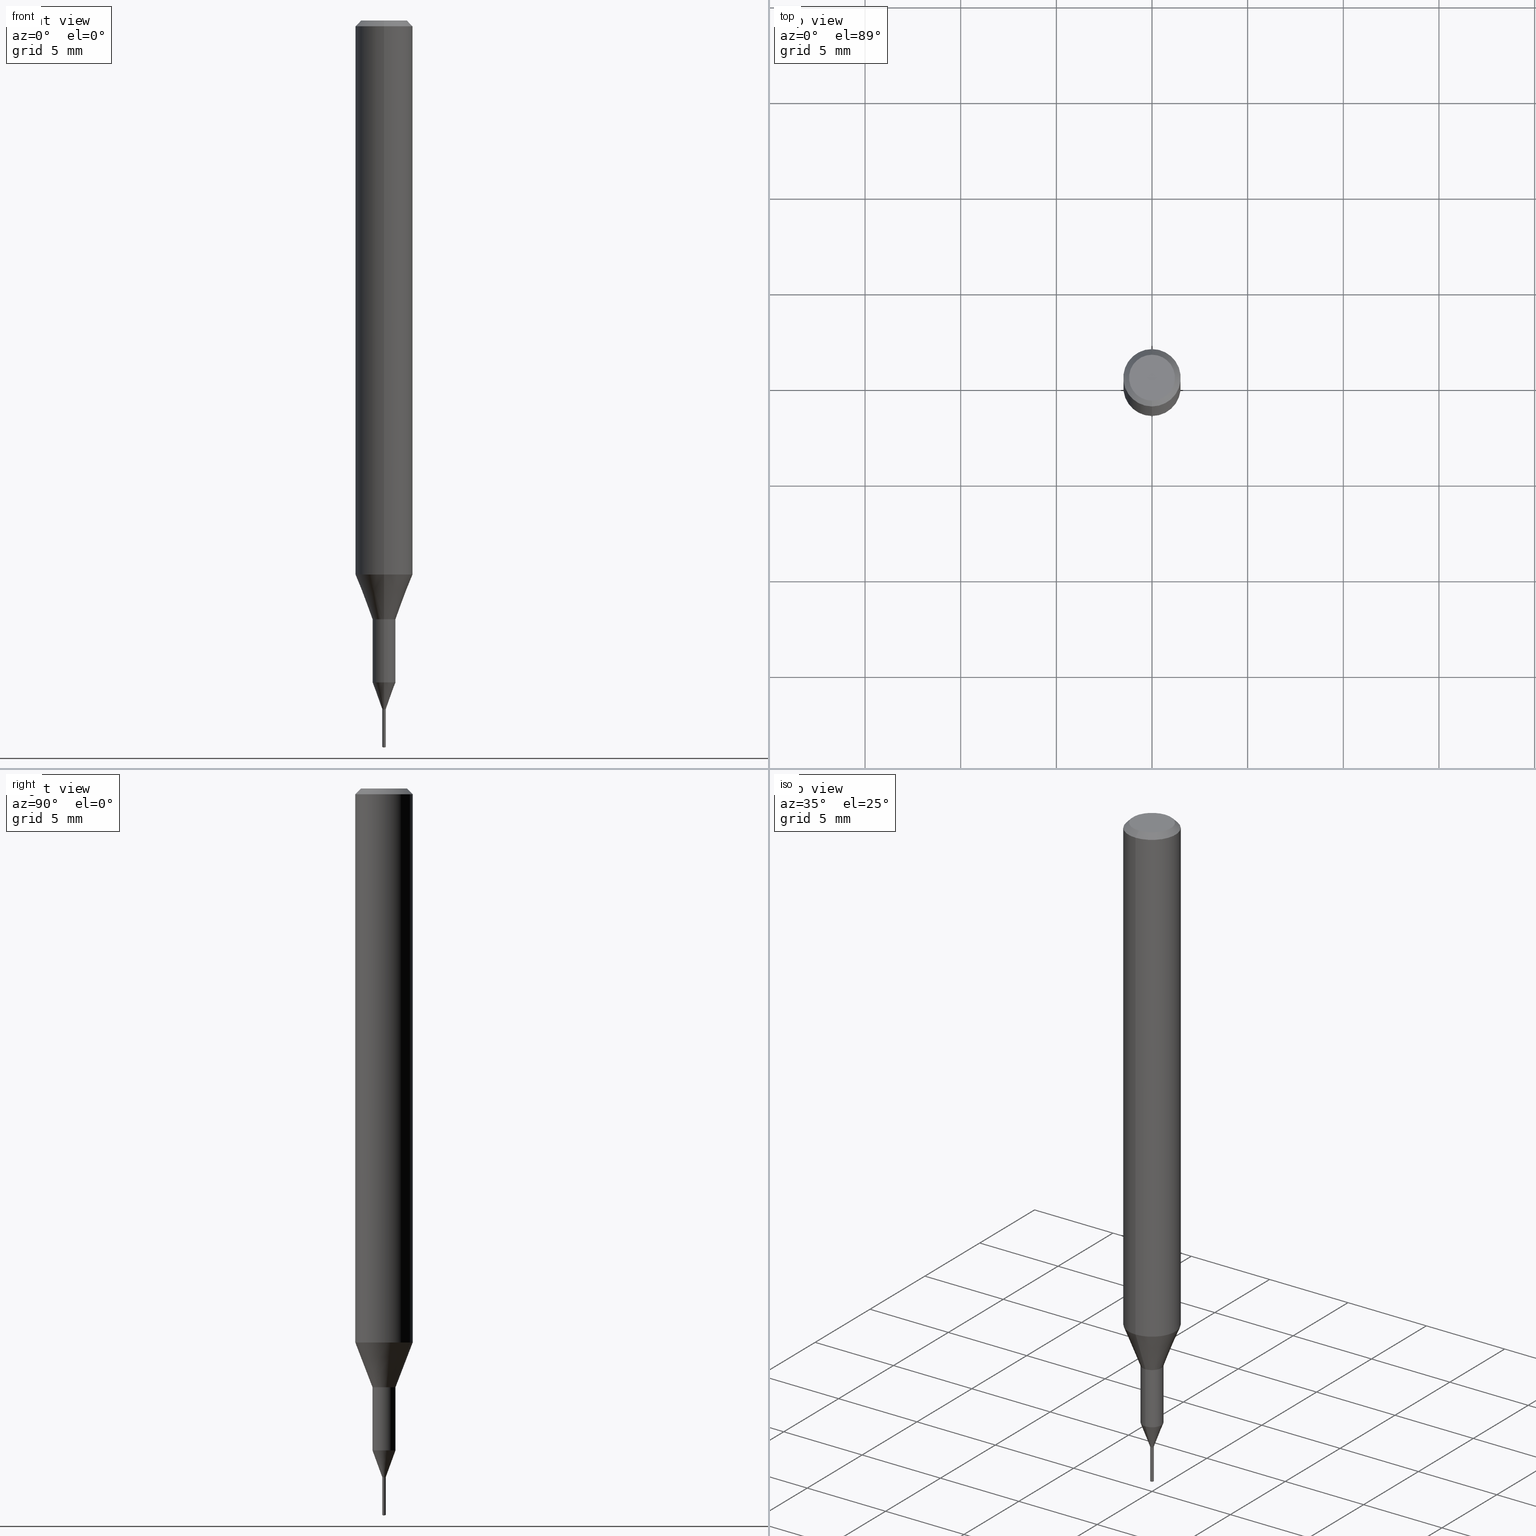
[diagram: canonical four-view strip — front | top / right | iso, engineering-drawing reading convention]
A machine part, canonical four-view strip (front | top / right | iso — engineering-drawing reading convention). The complete STEP part file that produces these views, byte-faithful:
ISO-10303-21;
HEADER;
FILE_DESCRIPTION(('no description'),'unknown implementation level');
FILE_NAME('C-UMD2018-020-Huellk.stp','  ',('CIMSOURCE GmbH'),('CADClick - KiM GmbH - www.kimweb.de'),'unknown preprocess','ACIS','unknown authorization');
FILE_SCHEMA(('automotive_design'));
ENDSEC;
DATA;
#1=MECHANICAL_DESIGN_GEOMETRIC_PRESENTATION_REPRESENTATION(' ',(#14,#15,#16,#17,#18,#19,#20,#21,#22,#23,#24,#25,#26,#27,#28,#29,#30,#31,#32,#33,#34,#35,#36,#37,#38,#39,#40,#41,#42,#43,#44,#45,#46,#47,#48,#49,#50,#51,#52,#53,#54,#55,#56,#57,#58,#59,#60,#61,#62,#63,#64,#65,#66,#67,#68,#69,#70,#71,#72,#73,#74,#75,#76,#77,#78,#79,#80,#81,#82,#83,#84,#85,#86,#87,#88,#89,#90,#91,#92),#10);
#2=PRODUCT_DEFINITION_CONTEXT('',#93,'design');
#3=APPLICATION_PROTOCOL_DEFINITION('INTERNATIONAL STANDARD','automotive_design',1994,#93);
#4=PRODUCT_CATEGORY_RELATIONSHIP('NONE','NONE',#94,#95);
#5=SHAPE_DEFINITION_REPRESENTATION(#96,#97);
#6=PRODUCT_DEFINITION_CONTEXT('',#98,'design');
#7=APPLICATION_PROTOCOL_DEFINITION('INTERNATIONAL STANDARD','automotive_design',1994,#98);
#8=PRODUCT_CATEGORY_RELATIONSHIP('NONE','NONE',#99,#100);
#9=SHAPE_DEFINITION_REPRESENTATION(#101,#102);
#10= (GEOMETRIC_REPRESENTATION_CONTEXT(3)GLOBAL_UNCERTAINTY_ASSIGNED_CONTEXT((#105))GLOBAL_UNIT_ASSIGNED_CONTEXT((#107,#108,#109))REPRESENTATION_CONTEXT('NONE','WORKSPACE'));
#14=STYLED_ITEM('',(#111),#112);
#15=STYLED_ITEM('',(#113),#114);
#16=STYLED_ITEM('',(#115),#116);
#17=STYLED_ITEM('',(#117),#118);
#18=STYLED_ITEM('',(#119),#120);
#19=STYLED_ITEM('',(#121),#122);
#20=STYLED_ITEM('',(#123),#124);
#21=STYLED_ITEM('',(#125),#126);
#22=STYLED_ITEM('',(#127),#128);
#23=STYLED_ITEM('',(#129),#130);
#24=STYLED_ITEM('',(#131),#132);
#25=STYLED_ITEM('',(#133),#134);
#26=STYLED_ITEM('',(#135),#136);
#27=STYLED_ITEM('',(#137),#138);
#28=STYLED_ITEM('',(#139),#140);
#29=STYLED_ITEM('',(#141),#142);
#30=STYLED_ITEM('',(#143),#144);
#31=STYLED_ITEM('',(#145),#146);
#32=STYLED_ITEM('',(#147),#148);
#33=STYLED_ITEM('',(#149),#150);
#34=STYLED_ITEM('',(#151),#152);
#35=STYLED_ITEM('',(#153),#154);
#36=STYLED_ITEM('',(#155),#156);
#37=STYLED_ITEM('',(#157),#158);
#38=STYLED_ITEM('',(#159),#160);
#39=STYLED_ITEM('',(#161),#162);
#40=STYLED_ITEM('',(#163),#164);
#41=STYLED_ITEM('',(#165),#166);
#42=STYLED_ITEM('',(#167),#168);
#43=STYLED_ITEM('',(#169),#170);
#44=STYLED_ITEM('',(#171),#172);
#45=STYLED_ITEM('',(#173),#174);
#46=STYLED_ITEM('',(#175),#176);
#47=STYLED_ITEM('',(#177),#178);
#48=STYLED_ITEM('',(#179),#180);
#49=STYLED_ITEM('',(#181),#182);
#50=STYLED_ITEM('',(#183),#184);
#51=STYLED_ITEM('',(#185),#186);
#52=STYLED_ITEM('',(#187),#188);
#53=STYLED_ITEM('',(#189),#190);
#54=STYLED_ITEM('',(#191),#192);
#55=STYLED_ITEM('',(#193),#194);
#56=STYLED_ITEM('',(#195),#196);
#57=STYLED_ITEM('',(#197),#198);
#58=STYLED_ITEM('',(#199),#200);
#59=STYLED_ITEM('',(#201),#202);
#60=STYLED_ITEM('',(#203),#204);
#61=STYLED_ITEM('',(#205),#206);
#62=STYLED_ITEM('',(#207),#208);
#63=STYLED_ITEM('',(#209),#210);
#64=STYLED_ITEM('',(#211),#212);
#65=STYLED_ITEM('',(#213),#214);
#66=STYLED_ITEM('',(#215),#216);
#67=STYLED_ITEM('',(#217),#218);
#68=STYLED_ITEM('',(#219),#220);
#69=STYLED_ITEM('',(#221),#222);
#70=STYLED_ITEM('',(#223),#224);
#71=STYLED_ITEM('',(#225),#226);
#72=STYLED_ITEM('',(#227),#228);
#73=STYLED_ITEM('',(#229),#230);
#74=STYLED_ITEM('',(#231),#232);
#75=STYLED_ITEM('',(#233),#234);
#76=STYLED_ITEM('',(#235),#236);
#77=STYLED_ITEM('',(#237),#238);
#78=STYLED_ITEM('',(#239),#240);
#79=STYLED_ITEM('',(#241),#242);
#80=STYLED_ITEM('',(#243),#244);
#81=STYLED_ITEM('',(#245),#246);
#82=STYLED_ITEM('',(#247),#248);
#83=STYLED_ITEM('',(#249),#250);
#84=STYLED_ITEM('',(#251),#252);
#85=STYLED_ITEM('',(#253),#254);
#86=STYLED_ITEM('',(#255),#256);
#87=STYLED_ITEM('',(#257),#258);
#88=STYLED_ITEM('',(#259),#260);
#89=STYLED_ITEM('',(#261),#262);
#90=STYLED_ITEM('',(#263),#264);
#91=STYLED_ITEM('',(#265),#266);
#92=STYLED_ITEM('',(#267),#268);
#93=APPLICATION_CONTEXT(' ');
#94=PRODUCT_CATEGORY('part','NONE');
#95=PRODUCT_RELATED_PRODUCT_CATEGORY('detail',' ',(#269));
#96=PRODUCT_DEFINITION_SHAPE('NONE','NONE',#270);
#97=ADVANCED_BREP_SHAPE_REPRESENTATION('1',(#266,#271),#10);
#98=APPLICATION_CONTEXT(' ');
#99=PRODUCT_CATEGORY('part','NONE');
#100=PRODUCT_RELATED_PRODUCT_CATEGORY('detail',' ',(#272));
#101=PRODUCT_DEFINITION_SHAPE('NONE','NONE',#273);
#102=ADVANCED_BREP_SHAPE_REPRESENTATION('2',(#200,#274),#10);
#105=UNCERTAINTY_MEASURE_WITH_UNIT(LENGTH_MEASURE(1.0E-006),#107,'','');
#107= (CONVERSION_BASED_UNIT('MILLIMETRE',#277)LENGTH_UNIT()NAMED_UNIT(#280));
#108= (NAMED_UNIT(#282)PLANE_ANGLE_UNIT()SI_UNIT($,.RADIAN.));
#109= (NAMED_UNIT(#282)SOLID_ANGLE_UNIT()SI_UNIT($,.STERADIAN.));
#111=PRESENTATION_STYLE_ASSIGNMENT((#288));
#112=ADVANCED_FACE('',(#289),#290,.T.);
#113=PRESENTATION_STYLE_ASSIGNMENT((#291));
#114=VERTEX_POINT('',#292);
#115=PRESENTATION_STYLE_ASSIGNMENT((#293));
#116=EDGE_CURVE('',#156,#118,#294,.T.);
#117=PRESENTATION_STYLE_ASSIGNMENT((#295));
#118=VERTEX_POINT('',#296);
#119=PRESENTATION_STYLE_ASSIGNMENT((#297));
#120=EDGE_CURVE('',#138,#174,#298,.T.);
#121=PRESENTATION_STYLE_ASSIGNMENT((#299));
#122=ADVANCED_FACE('',(#300),#301,.T.);
#123=PRESENTATION_STYLE_ASSIGNMENT((#302));
#124=EDGE_CURVE('',#162,#174,#303,.T.);
#125=PRESENTATION_STYLE_ASSIGNMENT((#304));
#126=ADVANCED_FACE('',(#305),#306,.T.);
#127=PRESENTATION_STYLE_ASSIGNMENT((#307));
#128=ADVANCED_FACE('',(#308),#309,.T.);
#129=PRESENTATION_STYLE_ASSIGNMENT((#310));
#130=ADVANCED_FACE('',(#311),#312,.T.);
#131=PRESENTATION_STYLE_ASSIGNMENT((#313));
#132=EDGE_CURVE('',#134,#114,#314,.T.);
#133=PRESENTATION_STYLE_ASSIGNMENT((#315));
#134=VERTEX_POINT('',#316);
#135=PRESENTATION_STYLE_ASSIGNMENT((#317));
#136=ADVANCED_FACE('',(#318),#319,.T.);
#137=PRESENTATION_STYLE_ASSIGNMENT((#320));
#138=VERTEX_POINT('',#321);
#139=PRESENTATION_STYLE_ASSIGNMENT((#322));
#140=VERTEX_POINT('',#323);
#141=PRESENTATION_STYLE_ASSIGNMENT((#324));
#142=ADVANCED_FACE('',(#325),#326,.T.);
#143=PRESENTATION_STYLE_ASSIGNMENT((#327));
#144=EDGE_CURVE('',#156,#256,#328,.T.);
#145=PRESENTATION_STYLE_ASSIGNMENT((#329));
#146=EDGE_CURVE('',#170,#140,#330,.T.);
#147=PRESENTATION_STYLE_ASSIGNMENT((#331));
#148=EDGE_CURVE('',#212,#254,#332,.T.);
#149=PRESENTATION_STYLE_ASSIGNMENT((#333));
#150=EDGE_CURVE('',#254,#212,#334,.T.);
#151=PRESENTATION_STYLE_ASSIGNMENT((#335));
#152=ADVANCED_FACE('',(#336),#337,.T.);
#153=PRESENTATION_STYLE_ASSIGNMENT((#338));
#154=EDGE_CURVE('',#114,#134,#339,.T.);
#155=PRESENTATION_STYLE_ASSIGNMENT((#340));
#156=VERTEX_POINT('',#341);
#157=PRESENTATION_STYLE_ASSIGNMENT((#342));
#158=ADVANCED_FACE('',(#343),#344,.T.);
#159=PRESENTATION_STYLE_ASSIGNMENT((#345));
#160=EDGE_CURVE('',#256,#156,#346,.T.);
#161=PRESENTATION_STYLE_ASSIGNMENT((#347));
#162=VERTEX_POINT('',#348);
#163=PRESENTATION_STYLE_ASSIGNMENT((#349));
#164=EDGE_CURVE('',#138,#238,#350,.T.);
#165=PRESENTATION_STYLE_ASSIGNMENT((#351));
#166=EDGE_CURVE('',#180,#256,#352,.T.);
#167=PRESENTATION_STYLE_ASSIGNMENT((#353));
#168=EDGE_CURVE('',#174,#180,#354,.T.);
#169=PRESENTATION_STYLE_ASSIGNMENT((#355));
#170=VERTEX_POINT('',#356);
#171=PRESENTATION_STYLE_ASSIGNMENT((#357));
#172=EDGE_CURVE('',#260,#252,#358,.T.);
#173=PRESENTATION_STYLE_ASSIGNMENT((#359));
#174=VERTEX_POINT('',#360);
#175=PRESENTATION_STYLE_ASSIGNMENT((#361));
#176=ADVANCED_FACE('',(#362),#363,.T.);
#177=PRESENTATION_STYLE_ASSIGNMENT((#364));
#178=ADVANCED_FACE('',(#365),#366,.T.);
#179=PRESENTATION_STYLE_ASSIGNMENT((#367));
#180=VERTEX_POINT('',#368);
#181=PRESENTATION_STYLE_ASSIGNMENT((#369));
#182=EDGE_CURVE('',#184,#134,#370,.T.);
#183=PRESENTATION_STYLE_ASSIGNMENT((#371));
#184=VERTEX_POINT('',#372);
#185=PRESENTATION_STYLE_ASSIGNMENT((#373));
#186=EDGE_CURVE('',#184,#260,#374,.T.);
#187=PRESENTATION_STYLE_ASSIGNMENT((#375));
#188=VERTEX_POINT('',#376);
#189=PRESENTATION_STYLE_ASSIGNMENT((#377));
#190=EDGE_CURVE('',#174,#162,#378,.T.);
#191=PRESENTATION_STYLE_ASSIGNMENT((#379));
#192=EDGE_CURVE('',#238,#138,#380,.T.);
#193=PRESENTATION_STYLE_ASSIGNMENT((#381));
#194=VERTEX_POINT('',#382);
#195=PRESENTATION_STYLE_ASSIGNMENT((#383));
#196=VERTEX_POINT('',#384);
#197=PRESENTATION_STYLE_ASSIGNMENT((#385));
#198=EDGE_CURVE('',#196,#188,#386,.T.);
#199=PRESENTATION_STYLE_ASSIGNMENT((#387));
#200=MANIFOLD_SOLID_BREP('2',#388);
#201=PRESENTATION_STYLE_ASSIGNMENT((#389));
#202=EDGE_CURVE('',#188,#196,#390,.T.);
#203=PRESENTATION_STYLE_ASSIGNMENT((#391));
#204=ADVANCED_FACE('',(#392),#393,.T.);
#205=PRESENTATION_STYLE_ASSIGNMENT((#394));
#206=EDGE_CURVE('',#140,#170,#395,.T.);
#207=PRESENTATION_STYLE_ASSIGNMENT((#396));
#208=EDGE_CURVE('',#254,#170,#397,.T.);
#209=PRESENTATION_STYLE_ASSIGNMENT((#398));
#210=EDGE_CURVE('',#252,#194,#399,.T.);
#211=PRESENTATION_STYLE_ASSIGNMENT((#400));
#212=VERTEX_POINT('',#401);
#213=PRESENTATION_STYLE_ASSIGNMENT((#402));
#214=VERTEX_POINT('',#403);
#215=PRESENTATION_STYLE_ASSIGNMENT((#404));
#216=EDGE_CURVE('',#114,#260,#405,.T.);
#217=PRESENTATION_STYLE_ASSIGNMENT((#406));
#218=ADVANCED_FACE('',(#407),#408,.T.);
#219=PRESENTATION_STYLE_ASSIGNMENT((#409));
#220=ADVANCED_FACE('',(#410),#411,.T.);
#221=PRESENTATION_STYLE_ASSIGNMENT((#412));
#222=ADVANCED_FACE('',(#413,#414),#415,.T.);
#223=PRESENTATION_STYLE_ASSIGNMENT((#416));
#224=EDGE_CURVE('',#134,#214,#417,.T.);
#225=PRESENTATION_STYLE_ASSIGNMENT((#418));
#226=EDGE_CURVE('',#212,#188,#419,.T.);
#227=PRESENTATION_STYLE_ASSIGNMENT((#420));
#228=EDGE_CURVE('',#118,#162,#421,.T.);
#229=PRESENTATION_STYLE_ASSIGNMENT((#422));
#230=ADVANCED_FACE('',(#423),#424,.T.);
#231=PRESENTATION_STYLE_ASSIGNMENT((#425));
#232=EDGE_CURVE('',#214,#114,#426,.T.);
#233=PRESENTATION_STYLE_ASSIGNMENT((#427));
#234=EDGE_CURVE('',#194,#184,#428,.T.);
#235=PRESENTATION_STYLE_ASSIGNMENT((#429));
#236=EDGE_CURVE('',#260,#184,#430,.T.);
#237=PRESENTATION_STYLE_ASSIGNMENT((#431));
#238=VERTEX_POINT('',#432);
#239=PRESENTATION_STYLE_ASSIGNMENT((#433));
#240=ADVANCED_FACE('',(#434),#435,.T.);
#241=PRESENTATION_STYLE_ASSIGNMENT((#436));
#242=ADVANCED_FACE('',(#437),#438,.T.);
#243=PRESENTATION_STYLE_ASSIGNMENT((#439));
#244=ADVANCED_FACE('',(#440),#441,.T.);
#245=PRESENTATION_STYLE_ASSIGNMENT((#442));
#246=EDGE_CURVE('',#140,#212,#443,.T.);
#247=PRESENTATION_STYLE_ASSIGNMENT((#444));
#248=EDGE_CURVE('',#118,#180,#445,.T.);
#249=PRESENTATION_STYLE_ASSIGNMENT((#446));
#250=EDGE_CURVE('',#180,#118,#447,.T.);
#251=PRESENTATION_STYLE_ASSIGNMENT((#448));
#252=VERTEX_POINT('',#449);
#253=PRESENTATION_STYLE_ASSIGNMENT((#450));
#254=VERTEX_POINT('',#451);
#255=PRESENTATION_STYLE_ASSIGNMENT((#452));
#256=VERTEX_POINT('',#453);
#257=PRESENTATION_STYLE_ASSIGNMENT((#454));
#258=ADVANCED_FACE('',(#455),#456,.T.);
#259=PRESENTATION_STYLE_ASSIGNMENT((#457));
#260=VERTEX_POINT('',#458);
#261=PRESENTATION_STYLE_ASSIGNMENT((#459));
#262=EDGE_CURVE('',#196,#254,#460,.T.);
#263=PRESENTATION_STYLE_ASSIGNMENT((#461));
#264=EDGE_CURVE('',#194,#252,#462,.T.);
#265=PRESENTATION_STYLE_ASSIGNMENT((#463));
#266=MANIFOLD_SOLID_BREP('1',#464);
#267=PRESENTATION_STYLE_ASSIGNMENT((#465));
#268=EDGE_CURVE('',#162,#238,#466,.T.);
#269=PRODUCT('1','1','PART-1-DESC',(#467));
#270=PRODUCT_DEFINITION('NONE','NONE',#468,#2);
#271=AXIS2_PLACEMENT_3D('',#469,#470,#471);
#272=PRODUCT('2','2','PART-2-DESC',(#472));
#273=PRODUCT_DEFINITION('NONE','NONE',#473,#6);
#274=AXIS2_PLACEMENT_3D('',#474,#475,#476);
#277=LENGTH_MEASURE_WITH_UNIT(LENGTH_MEASURE(1.0),#477);
#280=DIMENSIONAL_EXPONENTS(1.0,0.0,0.0,0.0,0.0,0.0,0.0);
#282=DIMENSIONAL_EXPONENTS(0.0,0.0,0.0,0.0,0.0,0.0,0.0);
#288=SURFACE_STYLE_USAGE(.BOTH.,#478);
#289=FACE_OUTER_BOUND('',#479,.T.);
#290=CONICAL_SURFACE('',#480,0.344993199500357,0.349083310172878);
#291=POINT_STYLE(' ',#481,POSITIVE_LENGTH_MEASURE(1.0E-006),#482);
#292=CARTESIAN_POINT('',(0.09,1.10214571844014E-017,-37.97588457));
#293=CURVE_STYLE('',#483,POSITIVE_LENGTH_MEASURE(1.0E-006),#484);
#294=LINE('',#485,#486);
#295=POINT_STYLE(' ',#487,POSITIVE_LENGTH_MEASURE(1.0E-006),#488);
#296=CARTESIAN_POINT('',(1.83690953073357E-016,-1.5,-28.955));
#297=CURVE_STYLE('',#489,POSITIVE_LENGTH_MEASURE(1.0E-006),#490);
#298=LINE('',#491,#492);
#299=SURFACE_STYLE_USAGE(.BOTH.,#493);
#300=FACE_OUTER_BOUND('',#494,.T.);
#301=PLANE('',#495);
#302=CURVE_STYLE('',#496,POSITIVE_LENGTH_MEASURE(1.0E-006),#497);
#303=CIRCLE('',#498,1.5);
#304=SURFACE_STYLE_USAGE(.BOTH.,#499);
#305=FACE_OUTER_BOUND('',#500,.T.);
#306=CONICAL_SURFACE('',#501,0.045,1.30899691120027);
#307=SURFACE_STYLE_USAGE(.BOTH.,#502);
#308=FACE_OUTER_BOUND('',#503,.T.);
#309=CONICAL_SURFACE('',#504,1.05,0.366459241971866);
#310=SURFACE_STYLE_USAGE(.BOTH.,#505);
#311=FACE_OUTER_BOUND('',#506,.T.);
#312=CYLINDRICAL_SURFACE('',#507,0.09);
#313=CURVE_STYLE('',#508,POSITIVE_LENGTH_MEASURE(1.0E-006),#509);
#314=CIRCLE('',#510,0.09);
#315=POINT_STYLE(' ',#511,POSITIVE_LENGTH_MEASURE(1.0E-006),#512);
#316=CARTESIAN_POINT('',(-0.09,0.0,-37.97588457));
#317=SURFACE_STYLE_USAGE(.BOTH.,#513);
#318=FACE_OUTER_BOUND('',#514,.T.);
#319=CONICAL_SURFACE('',#515,1.35,0.785398163397447);
#320=POINT_STYLE(' ',#516,POSITIVE_LENGTH_MEASURE(1.0E-006),#517);
#321=CARTESIAN_POINT('',(0.0,1.2,0.0));
#322=POINT_STYLE(' ',#518,POSITIVE_LENGTH_MEASURE(1.0E-006),#519);
#323=CARTESIAN_POINT('',(0.0,0.59995,-31.3));
#324=SURFACE_STYLE_USAGE(.BOTH.,#520);
#325=FACE_OUTER_BOUND('',#521,.T.);
#326=CYLINDRICAL_SURFACE('',#522,1.5);
#327=CURVE_STYLE('',#523,POSITIVE_LENGTH_MEASURE(1.0E-006),#524);
#328=CIRCLE('',#525,0.6);
#329=CURVE_STYLE('',#526,POSITIVE_LENGTH_MEASURE(1.0E-006),#527);
#330=CIRCLE('',#528,0.59995);
#331=CURVE_STYLE('',#529,POSITIVE_LENGTH_MEASURE(1.0E-006),#530);
#332=CIRCLE('',#531,0.59995);
#333=CURVE_STYLE('',#532,POSITIVE_LENGTH_MEASURE(1.0E-006),#533);
#334=CIRCLE('',#534,0.59995);
#335=SURFACE_STYLE_USAGE(.BOTH.,#535);
#336=FACE_OUTER_BOUND('',#536,.T.);
#337=CONICAL_SURFACE('',#537,0.045,1.30899691120027);
#338=CURVE_STYLE('',#538,POSITIVE_LENGTH_MEASURE(1.0E-006),#539);
#339=CIRCLE('',#540,0.09);
#340=POINT_STYLE(' ',#541,POSITIVE_LENGTH_MEASURE(1.0E-006),#542);
#341=CARTESIAN_POINT('',(7.34763812293426E-017,-0.6,-31.3));
#342=SURFACE_STYLE_USAGE(.BOTH.,#543);
#343=FACE_OUTER_BOUND('',#544,.T.);
#344=PLANE('',#545);
#345=CURVE_STYLE('',#546,POSITIVE_LENGTH_MEASURE(1.0E-006),#547);
#346=CIRCLE('',#548,0.6);
#347=POINT_STYLE(' ',#549,POSITIVE_LENGTH_MEASURE(1.0E-006),#550);
#348=CARTESIAN_POINT('',(1.83690953073357E-016,-1.5,-0.300000000000001));
#349=CURVE_STYLE('',#551,POSITIVE_LENGTH_MEASURE(1.0E-006),#552);
#350=CIRCLE('',#553,1.2);
#351=CURVE_STYLE('',#554,POSITIVE_LENGTH_MEASURE(1.0E-006),#555);
#352=LINE('',#556,#557);
#353=CURVE_STYLE('',#558,POSITIVE_LENGTH_MEASURE(1.0E-006),#559);
#354=LINE('',#560,#561);
#355=POINT_STYLE(' ',#562,POSITIVE_LENGTH_MEASURE(1.0E-006),#563);
#356=CARTESIAN_POINT('',(7.34702581975735E-017,-0.59995,-31.3));
#357=CURVE_STYLE('',#564,POSITIVE_LENGTH_MEASURE(1.0E-006),#565);
#358=LINE('',#566,#567);
#359=POINT_STYLE(' ',#568,POSITIVE_LENGTH_MEASURE(1.0E-006),#569);
#360=CARTESIAN_POINT('',(0.0,1.5,-0.300000000000001));
#361=SURFACE_STYLE_USAGE(.BOTH.,#570);
#362=FACE_OUTER_BOUND('',#571,.T.);
#363=CYLINDRICAL_SURFACE('',#572,0.59995);
#364=SURFACE_STYLE_USAGE(.BOTH.,#573);
#365=FACE_OUTER_BOUND('',#574,.T.);
#366=CONICAL_SURFACE('',#575,0.0905182012847965,1.47460649056462);
#367=POINT_STYLE(' ',#576,POSITIVE_LENGTH_MEASURE(1.0E-006),#577);
#368=CARTESIAN_POINT('',(0.0,1.5,-28.955));
#369=CURVE_STYLE('',#578,POSITIVE_LENGTH_MEASURE(1.0E-006),#579);
#370=LINE('',#580,#581);
#371=POINT_STYLE(' ',#582,POSITIVE_LENGTH_MEASURE(1.0E-006),#583);
#372=CARTESIAN_POINT('',(-0.09,0.0,-36.0));
#373=CURVE_STYLE('',#584,POSITIVE_LENGTH_MEASURE(1.0E-006),#585);
#374=CIRCLE('',#586,0.09);
#375=POINT_STYLE(' ',#587,POSITIVE_LENGTH_MEASURE(1.0E-006),#588);
#376=CARTESIAN_POINT('',(0.0,0.0900363990007137,-35.9999));
#377=CURVE_STYLE('',#589,POSITIVE_LENGTH_MEASURE(1.0E-006),#590);
#378=CIRCLE('',#591,1.5);
#379=CURVE_STYLE('',#592,POSITIVE_LENGTH_MEASURE(1.0E-006),#593);
#380=CIRCLE('',#594,1.2);
#381=POINT_STYLE(' ',#595,POSITIVE_LENGTH_MEASURE(1.0E-006),#596);
#382=CARTESIAN_POINT('',(-0.0910364025695931,0.0,-35.9999));
#383=POINT_STYLE(' ',#597,POSITIVE_LENGTH_MEASURE(1.0E-006),#598);
#384=CARTESIAN_POINT('',(1.10259146291561E-017,-0.0900363990007137,-35.9999));
#385=CURVE_STYLE('',#599,POSITIVE_LENGTH_MEASURE(1.0E-006),#600);
#386=CIRCLE('',#601,0.0900363990007137);
#387=SURFACE_STYLE_USAGE(.BOTH.,#602);
#388=CLOSED_SHELL('',(#152,#218,#242,#122,#178,#130,#126));
#389=CURVE_STYLE('',#603,POSITIVE_LENGTH_MEASURE(1.0E-006),#604);
#390=CIRCLE('',#605,0.0900363990007137);
#391=SURFACE_STYLE_USAGE(.BOTH.,#606);
#392=FACE_OUTER_BOUND('',#607,.T.);
#393=CONICAL_SURFACE('',#608,1.05,0.366459241971866);
#394=CURVE_STYLE('',#609,POSITIVE_LENGTH_MEASURE(1.0E-006),#610);
#395=CIRCLE('',#611,0.59995);
#396=CURVE_STYLE('',#612,POSITIVE_LENGTH_MEASURE(1.0E-006),#613);
#397=LINE('',#614,#615);
#398=CURVE_STYLE('',#616,POSITIVE_LENGTH_MEASURE(1.0E-006),#617);
#399=CIRCLE('',#618,0.0910364025695931);
#400=POINT_STYLE(' ',#619,POSITIVE_LENGTH_MEASURE(1.0E-006),#620);
#401=CARTESIAN_POINT('',(0.0,0.59995,-34.599));
#402=POINT_STYLE(' ',#621,POSITIVE_LENGTH_MEASURE(1.0E-006),#622);
#403=CARTESIAN_POINT('',(0.0,0.0,-38.0));
#404=CURVE_STYLE('',#623,POSITIVE_LENGTH_MEASURE(1.0E-006),#624);
#405=LINE('',#625,#626);
#406=SURFACE_STYLE_USAGE(.BOTH.,#627);
#407=FACE_OUTER_BOUND('',#628,.T.);
#408=CYLINDRICAL_SURFACE('',#629,0.09);
#409=SURFACE_STYLE_USAGE(.BOTH.,#630);
#410=FACE_OUTER_BOUND('',#631,.T.);
#411=CONICAL_SURFACE('',#632,0.344993199500357,0.349083310172878);
#412=SURFACE_STYLE_USAGE(.BOTH.,#633);
#413=FACE_BOUND('',#634,.T.);
#414=FACE_OUTER_BOUND('',#635,.T.);
#415=PLANE('',#636);
#416=CURVE_STYLE('',#637,POSITIVE_LENGTH_MEASURE(1.0E-006),#638);
#417=LINE('',#639,#640);
#418=CURVE_STYLE('',#641,POSITIVE_LENGTH_MEASURE(1.0E-006),#642);
#419=LINE('',#643,#644);
#420=CURVE_STYLE('',#645,POSITIVE_LENGTH_MEASURE(1.0E-006),#646);
#421=LINE('',#647,#648);
#422=SURFACE_STYLE_USAGE(.BOTH.,#649);
#423=FACE_OUTER_BOUND('',#650,.T.);
#424=CYLINDRICAL_SURFACE('',#651,0.59995);
#425=CURVE_STYLE('',#652,POSITIVE_LENGTH_MEASURE(1.0E-006),#653);
#426=LINE('',#654,#655);
#427=CURVE_STYLE('',#656,POSITIVE_LENGTH_MEASURE(1.0E-006),#657);
#428=LINE('',#658,#659);
#429=CURVE_STYLE('',#660,POSITIVE_LENGTH_MEASURE(1.0E-006),#661);
#430=CIRCLE('',#662,0.09);
#431=POINT_STYLE(' ',#663,POSITIVE_LENGTH_MEASURE(1.0E-006),#664);
#432=CARTESIAN_POINT('',(1.46952762458685E-016,-1.2,0.0));
#433=SURFACE_STYLE_USAGE(.BOTH.,#665);
#434=FACE_OUTER_BOUND('',#666,.T.);
#435=PLANE('',#667);
#436=SURFACE_STYLE_USAGE(.BOTH.,#668);
#437=FACE_OUTER_BOUND('',#669,.T.);
#438=CONICAL_SURFACE('',#670,0.0905182012847965,1.47460649056462);
#439=SURFACE_STYLE_USAGE(.BOTH.,#671);
#440=FACE_OUTER_BOUND('',#672,.T.);
#441=CONICAL_SURFACE('',#673,1.35,0.785398163397447);
#442=CURVE_STYLE('',#674,POSITIVE_LENGTH_MEASURE(1.0E-006),#675);
#443=LINE('',#676,#677);
#444=CURVE_STYLE('',#678,POSITIVE_LENGTH_MEASURE(1.0E-006),#679);
#445=CIRCLE('',#680,1.5);
#446=CURVE_STYLE('',#681,POSITIVE_LENGTH_MEASURE(1.0E-006),#682);
#447=CIRCLE('',#683,1.5);
#448=POINT_STYLE(' ',#684,POSITIVE_LENGTH_MEASURE(1.0E-006),#685);
#449=CARTESIAN_POINT('',(0.0910364025695931,1.11483757015856E-017,-35.9999));
#450=POINT_STYLE(' ',#686,POSITIVE_LENGTH_MEASURE(1.0E-006),#687);
#451=CARTESIAN_POINT('',(7.34702581975735E-017,-0.59995,-34.599));
#452=POINT_STYLE(' ',#688,POSITIVE_LENGTH_MEASURE(1.0E-006),#689);
#453=CARTESIAN_POINT('',(0.0,0.6,-31.3));
#454=SURFACE_STYLE_USAGE(.BOTH.,#690);
#455=FACE_OUTER_BOUND('',#691,.T.);
#456=CYLINDRICAL_SURFACE('',#692,1.5);
#457=POINT_STYLE(' ',#693,POSITIVE_LENGTH_MEASURE(1.0E-006),#694);
#458=CARTESIAN_POINT('',(0.09,1.10214571844014E-017,-36.0));
#459=CURVE_STYLE('',#695,POSITIVE_LENGTH_MEASURE(1.0E-006),#696);
#460=LINE('',#697,#698);
#461=CURVE_STYLE('',#699,POSITIVE_LENGTH_MEASURE(1.0E-006),#700);
#462=CIRCLE('',#701,0.0910364025695931);
#463=SURFACE_STYLE_USAGE(.BOTH.,#702);
#464=CLOSED_SHELL('',(#220,#230,#128,#258,#244,#240,#136,#142,#204,#222,#176,#112,#158));
#465=CURVE_STYLE('',#703,POSITIVE_LENGTH_MEASURE(1.0E-006),#704);
#466=LINE('',#705,#706);
#467=PRODUCT_CONTEXT('',#93,'mechanical');
#468=PRODUCT_DEFINITION_FORMATION_WITH_SPECIFIED_SOURCE(' ','NONE',#269,.NOT_KNOWN.);
#469=CARTESIAN_POINT('',(0.0,0.0,0.0));
#470=DIRECTION('',(0.0,0.0,1.0));
#471=DIRECTION('',(1.0,0.0,0.0));
#472=PRODUCT_CONTEXT('',#98,'mechanical');
#473=PRODUCT_DEFINITION_FORMATION_WITH_SPECIFIED_SOURCE(' ','NONE',#272,.NOT_KNOWN.);
#474=CARTESIAN_POINT('',(0.0,0.0,0.0));
#475=DIRECTION('',(0.0,0.0,1.0));
#476=DIRECTION('',(1.0,0.0,0.0));
#477= (NAMED_UNIT(#280)LENGTH_UNIT()SI_UNIT(.MILLI.,.METRE.));
#478=SURFACE_SIDE_STYLE('',(#708));
#479=EDGE_LOOP('',(#709,#710,#711,#712));
#480=AXIS2_PLACEMENT_3D('',#713,#714,#715);
#481=PRE_DEFINED_MARKER('');
#482=COLOUR_RGB('',0.800000011920929,0.800000011920929,0.800000011920929);
#483=DRAUGHTING_PRE_DEFINED_CURVE_FONT('continuous');
#484=COLOUR_RGB('',0.498039215803146,0.498039215803146,0.498039215803146);
#485=CARTESIAN_POINT('',(1.2858366715135E-016,-1.05,-30.1275));
#486=VECTOR('',#716,1.0);
#487=PRE_DEFINED_MARKER('');
#488=COLOUR_RGB('',0.498039215803146,0.498039215803146,0.498039215803146);
#489=DRAUGHTING_PRE_DEFINED_CURVE_FONT('continuous');
#490=COLOUR_RGB('',0.498039215803146,0.498039215803146,0.498039215803146);
#491=CARTESIAN_POINT('',(-1.65321857766021E-016,1.35,-0.149999999999999));
#492=VECTOR('',#717,1.0);
#493=SURFACE_SIDE_STYLE('',(#718));
#494=EDGE_LOOP('',(#719,#720));
#495=AXIS2_PLACEMENT_3D('',#721,#722,#723);
#496=DRAUGHTING_PRE_DEFINED_CURVE_FONT('continuous');
#497=COLOUR_RGB('',0.498039215803146,0.498039215803146,0.498039215803146);
#498=AXIS2_PLACEMENT_3D('',#724,#725,#726);
#499=SURFACE_SIDE_STYLE('',(#727));
#500=EDGE_LOOP('',(#728,#729,#730));
#501=AXIS2_PLACEMENT_3D('',#731,#732,#733);
#502=SURFACE_SIDE_STYLE('',(#734));
#503=EDGE_LOOP('',(#735,#736,#737,#738));
#504=AXIS2_PLACEMENT_3D('',#739,#740,#741);
#505=SURFACE_SIDE_STYLE('',(#742));
#506=EDGE_LOOP('',(#743,#744,#745,#746));
#507=AXIS2_PLACEMENT_3D('',#747,#748,#749);
#508=DRAUGHTING_PRE_DEFINED_CURVE_FONT('continuous');
#509=COLOUR_RGB('',0.800000011920929,0.800000011920929,0.800000011920929);
#510=AXIS2_PLACEMENT_3D('',#750,#751,#752);
#511=PRE_DEFINED_MARKER('');
#512=COLOUR_RGB('',0.800000011920929,0.800000011920929,0.800000011920929);
#513=SURFACE_SIDE_STYLE('',(#753));
#514=EDGE_LOOP('',(#754,#755,#756,#757));
#515=AXIS2_PLACEMENT_3D('',#758,#759,#760);
#516=PRE_DEFINED_MARKER('');
#517=COLOUR_RGB('',0.498039215803146,0.498039215803146,0.498039215803146);
#518=PRE_DEFINED_MARKER('');
#519=COLOUR_RGB('',0.498039215803146,0.498039215803146,0.498039215803146);
#520=SURFACE_SIDE_STYLE('',(#761));
#521=EDGE_LOOP('',(#762,#763,#764,#765));
#522=AXIS2_PLACEMENT_3D('',#766,#767,#768);
#523=DRAUGHTING_PRE_DEFINED_CURVE_FONT('continuous');
#524=COLOUR_RGB('',0.498039215803146,0.498039215803146,0.498039215803146);
#525=AXIS2_PLACEMENT_3D('',#769,#770,#771);
#526=DRAUGHTING_PRE_DEFINED_CURVE_FONT('continuous');
#527=COLOUR_RGB('',0.498039215803146,0.498039215803146,0.498039215803146);
#528=AXIS2_PLACEMENT_3D('',#772,#773,#774);
#529=DRAUGHTING_PRE_DEFINED_CURVE_FONT('continuous');
#530=COLOUR_RGB('',0.498039215803146,0.498039215803146,0.498039215803146);
#531=AXIS2_PLACEMENT_3D('',#775,#776,#777);
#532=DRAUGHTING_PRE_DEFINED_CURVE_FONT('continuous');
#533=COLOUR_RGB('',0.498039215803146,0.498039215803146,0.498039215803146);
#534=AXIS2_PLACEMENT_3D('',#778,#779,#780);
#535=SURFACE_SIDE_STYLE('',(#781));
#536=EDGE_LOOP('',(#782,#783,#784));
#537=AXIS2_PLACEMENT_3D('',#785,#786,#787);
#538=DRAUGHTING_PRE_DEFINED_CURVE_FONT('continuous');
#539=COLOUR_RGB('',0.800000011920929,0.800000011920929,0.800000011920929);
#540=AXIS2_PLACEMENT_3D('',#788,#789,#790);
#541=PRE_DEFINED_MARKER('');
#542=COLOUR_RGB('',0.498039215803146,0.498039215803146,0.498039215803146);
#543=SURFACE_SIDE_STYLE('',(#791));
#544=EDGE_LOOP('',(#792,#793));
#545=AXIS2_PLACEMENT_3D('',#794,#795,#796);
#546=DRAUGHTING_PRE_DEFINED_CURVE_FONT('continuous');
#547=COLOUR_RGB('',0.498039215803146,0.498039215803146,0.498039215803146);
#548=AXIS2_PLACEMENT_3D('',#797,#798,#799);
#549=PRE_DEFINED_MARKER('');
#550=COLOUR_RGB('',0.498039215803146,0.498039215803146,0.498039215803146);
#551=DRAUGHTING_PRE_DEFINED_CURVE_FONT('continuous');
#552=COLOUR_RGB('',0.498039215803146,0.498039215803146,0.498039215803146);
#553=AXIS2_PLACEMENT_3D('',#800,#801,#802);
#554=DRAUGHTING_PRE_DEFINED_CURVE_FONT('continuous');
#555=COLOUR_RGB('',0.498039215803146,0.498039215803146,0.498039215803146);
#556=CARTESIAN_POINT('',(-1.2858366715135E-016,1.05,-30.1275));
#557=VECTOR('',#803,1.0);
#558=DRAUGHTING_PRE_DEFINED_CURVE_FONT('continuous');
#559=COLOUR_RGB('',0.498039215803146,0.498039215803146,0.498039215803146);
#560=CARTESIAN_POINT('',(-1.83690953073357E-016,1.5,-14.6275));
#561=VECTOR('',#804,1.0);
#562=PRE_DEFINED_MARKER('');
#563=COLOUR_RGB('',0.498039215803146,0.498039215803146,0.498039215803146);
#564=DRAUGHTING_PRE_DEFINED_CURVE_FONT('continuous');
#565=COLOUR_RGB('',0.800000011920929,0.800000011920929,0.800000011920929);
#566=CARTESIAN_POINT('',(0.0905182012847966,1.10849164429935E-017,-35.99995));
#567=VECTOR('',#805,1.0);
#568=PRE_DEFINED_MARKER('');
#569=COLOUR_RGB('',0.498039215803146,0.498039215803146,0.498039215803146);
#570=SURFACE_SIDE_STYLE('',(#806));
#571=EDGE_LOOP('',(#807,#808,#809,#810));
#572=AXIS2_PLACEMENT_3D('',#811,#812,#813);
#573=SURFACE_SIDE_STYLE('',(#814));
#574=EDGE_LOOP('',(#815,#816,#817,#818));
#575=AXIS2_PLACEMENT_3D('',#819,#820,#821);
#576=PRE_DEFINED_MARKER('');
#577=COLOUR_RGB('',0.498039215803146,0.498039215803146,0.498039215803146);
#578=DRAUGHTING_PRE_DEFINED_CURVE_FONT('continuous');
#579=COLOUR_RGB('',0.800000011920929,0.800000011920929,0.800000011920929);
#580=CARTESIAN_POINT('',(-0.09,-1.10214571844014E-017,-36.987942285));
#581=VECTOR('',#822,1.0);
#582=PRE_DEFINED_MARKER('');
#583=COLOUR_RGB('',0.800000011920929,0.800000011920929,0.800000011920929);
#584=DRAUGHTING_PRE_DEFINED_CURVE_FONT('continuous');
#585=COLOUR_RGB('',0.800000011920929,0.800000011920929,0.800000011920929);
#586=AXIS2_PLACEMENT_3D('',#823,#824,#825);
#587=PRE_DEFINED_MARKER('');
#588=COLOUR_RGB('',0.498039215803146,0.498039215803146,0.498039215803146);
#589=DRAUGHTING_PRE_DEFINED_CURVE_FONT('continuous');
#590=COLOUR_RGB('',0.498039215803146,0.498039215803146,0.498039215803146);
#591=AXIS2_PLACEMENT_3D('',#826,#827,#828);
#592=DRAUGHTING_PRE_DEFINED_CURVE_FONT('continuous');
#593=COLOUR_RGB('',0.498039215803146,0.498039215803146,0.498039215803146);
#594=AXIS2_PLACEMENT_3D('',#829,#830,#831);
#595=PRE_DEFINED_MARKER('');
#596=COLOUR_RGB('',0.800000011920929,0.800000011920929,0.800000011920929);
#597=PRE_DEFINED_MARKER('');
#598=COLOUR_RGB('',0.498039215803146,0.498039215803146,0.498039215803146);
#599=DRAUGHTING_PRE_DEFINED_CURVE_FONT('continuous');
#600=COLOUR_RGB('',0.498039215803146,0.498039215803146,0.498039215803146);
#601=AXIS2_PLACEMENT_3D('',#832,#833,#834);
#602=SURFACE_SIDE_STYLE('',(#835));
#603=DRAUGHTING_PRE_DEFINED_CURVE_FONT('continuous');
#604=COLOUR_RGB('',0.498039215803146,0.498039215803146,0.498039215803146);
#605=AXIS2_PLACEMENT_3D('',#836,#837,#838);
#606=SURFACE_SIDE_STYLE('',(#839));
#607=EDGE_LOOP('',(#840,#841,#842,#843));
#608=AXIS2_PLACEMENT_3D('',#844,#845,#846);
#609=DRAUGHTING_PRE_DEFINED_CURVE_FONT('continuous');
#610=COLOUR_RGB('',0.498039215803146,0.498039215803146,0.498039215803146);
#611=AXIS2_PLACEMENT_3D('',#847,#848,#849);
#612=DRAUGHTING_PRE_DEFINED_CURVE_FONT('continuous');
#613=COLOUR_RGB('',0.498039215803146,0.498039215803146,0.498039215803146);
#614=CARTESIAN_POINT('',(7.34702581975735E-017,-0.59995,-32.9495));
#615=VECTOR('',#850,1.0);
#616=DRAUGHTING_PRE_DEFINED_CURVE_FONT('continuous');
#617=COLOUR_RGB('',0.800000011920929,0.800000011920929,0.800000011920929);
#618=AXIS2_PLACEMENT_3D('',#851,#852,#853);
#619=PRE_DEFINED_MARKER('');
#620=COLOUR_RGB('',0.498039215803146,0.498039215803146,0.498039215803146);
#621=PRE_DEFINED_MARKER('');
#622=COLOUR_RGB('',0.800000011920929,0.800000011920929,0.800000011920929);
#623=DRAUGHTING_PRE_DEFINED_CURVE_FONT('continuous');
#624=COLOUR_RGB('',0.800000011920929,0.800000011920929,0.800000011920929);
#625=CARTESIAN_POINT('',(0.09,1.10214571844014E-017,-36.987942285));
#626=VECTOR('',#854,1.0);
#627=SURFACE_SIDE_STYLE('',(#855));
#628=EDGE_LOOP('',(#856,#857,#858,#859));
#629=AXIS2_PLACEMENT_3D('',#860,#861,#862);
#630=SURFACE_SIDE_STYLE('',(#863));
#631=EDGE_LOOP('',(#864,#865,#866,#867));
#632=AXIS2_PLACEMENT_3D('',#868,#869,#870);
#633=SURFACE_SIDE_STYLE('',(#871));
#634=EDGE_LOOP('',(#872,#873));
#635=EDGE_LOOP('',(#874,#875));
#636=AXIS2_PLACEMENT_3D('',#876,#877,#878);
#637=DRAUGHTING_PRE_DEFINED_CURVE_FONT('continuous');
#638=COLOUR_RGB('',0.800000011920929,0.800000011920929,0.800000011920929);
#639=CARTESIAN_POINT('',(-0.045,-5.5107285922007E-018,-37.987942285));
#640=VECTOR('',#879,1.0);
#641=DRAUGHTING_PRE_DEFINED_CURVE_FONT('continuous');
#642=COLOUR_RGB('',0.498039215803146,0.498039215803146,0.498039215803146);
#643=CARTESIAN_POINT('',(-4.22480864133648E-017,0.344993199500357,-35.29945));
#644=VECTOR('',#880,1.0);
#645=DRAUGHTING_PRE_DEFINED_CURVE_FONT('continuous');
#646=COLOUR_RGB('',0.498039215803146,0.498039215803146,0.498039215803146);
#647=CARTESIAN_POINT('',(1.83690953073357E-016,-1.5,-14.6275));
#648=VECTOR('',#881,1.0);
#649=SURFACE_SIDE_STYLE('',(#882));
#650=EDGE_LOOP('',(#883,#884,#885,#886));
#651=AXIS2_PLACEMENT_3D('',#887,#888,#889);
#652=DRAUGHTING_PRE_DEFINED_CURVE_FONT('continuous');
#653=COLOUR_RGB('',0.800000011920929,0.800000011920929,0.800000011920929);
#654=CARTESIAN_POINT('',(0.045,5.5107285922007E-018,-37.987942285));
#655=VECTOR('',#890,1.0);
#656=DRAUGHTING_PRE_DEFINED_CURVE_FONT('continuous');
#657=COLOUR_RGB('',0.800000011920929,0.800000011920929,0.800000011920929);
#658=CARTESIAN_POINT('',(-0.0905182012847966,-1.10849164429935E-017,-35.99995));
#659=VECTOR('',#891,1.0);
#660=DRAUGHTING_PRE_DEFINED_CURVE_FONT('continuous');
#661=COLOUR_RGB('',0.800000011920929,0.800000011920929,0.800000011920929);
#662=AXIS2_PLACEMENT_3D('',#892,#893,#894);
#663=PRE_DEFINED_MARKER('');
#664=COLOUR_RGB('',0.498039215803146,0.498039215803146,0.498039215803146);
#665=SURFACE_SIDE_STYLE('',(#895));
#666=EDGE_LOOP('',(#896,#897));
#667=AXIS2_PLACEMENT_3D('',#898,#899,#900);
#668=SURFACE_SIDE_STYLE('',(#901));
#669=EDGE_LOOP('',(#902,#903,#904,#905));
#670=AXIS2_PLACEMENT_3D('',#906,#907,#908);
#671=SURFACE_SIDE_STYLE('',(#909));
#672=EDGE_LOOP('',(#910,#911,#912,#913));
#673=AXIS2_PLACEMENT_3D('',#914,#915,#916);
#674=DRAUGHTING_PRE_DEFINED_CURVE_FONT('continuous');
#675=COLOUR_RGB('',0.498039215803146,0.498039215803146,0.498039215803146);
#676=CARTESIAN_POINT('',(-7.34702581975735E-017,0.59995,-32.9495));
#677=VECTOR('',#917,1.0);
#678=DRAUGHTING_PRE_DEFINED_CURVE_FONT('continuous');
#679=COLOUR_RGB('',0.498039215803146,0.498039215803146,0.498039215803146);
#680=AXIS2_PLACEMENT_3D('',#918,#919,#920);
#681=DRAUGHTING_PRE_DEFINED_CURVE_FONT('continuous');
#682=COLOUR_RGB('',0.498039215803146,0.498039215803146,0.498039215803146);
#683=AXIS2_PLACEMENT_3D('',#921,#922,#923);
#684=PRE_DEFINED_MARKER('');
#685=COLOUR_RGB('',0.800000011920929,0.800000011920929,0.800000011920929);
#686=PRE_DEFINED_MARKER('');
#687=COLOUR_RGB('',0.498039215803146,0.498039215803146,0.498039215803146);
#688=PRE_DEFINED_MARKER('');
#689=COLOUR_RGB('',0.498039215803146,0.498039215803146,0.498039215803146);
#690=SURFACE_SIDE_STYLE('',(#924));
#691=EDGE_LOOP('',(#925,#926,#927,#928));
#692=AXIS2_PLACEMENT_3D('',#929,#930,#931);
#693=PRE_DEFINED_MARKER('');
#694=COLOUR_RGB('',0.800000011920929,0.800000011920929,0.800000011920929);
#695=DRAUGHTING_PRE_DEFINED_CURVE_FONT('continuous');
#696=COLOUR_RGB('',0.498039215803146,0.498039215803146,0.498039215803146);
#697=CARTESIAN_POINT('',(4.22480864133648E-017,-0.344993199500357,-35.29945));
#698=VECTOR('',#932,1.0);
#699=DRAUGHTING_PRE_DEFINED_CURVE_FONT('continuous');
#700=COLOUR_RGB('',0.800000011920929,0.800000011920929,0.800000011920929);
#701=AXIS2_PLACEMENT_3D('',#933,#934,#935);
#702=SURFACE_SIDE_STYLE('',(#936));
#703=DRAUGHTING_PRE_DEFINED_CURVE_FONT('continuous');
#704=COLOUR_RGB('',0.498039215803146,0.498039215803146,0.498039215803146);
#705=CARTESIAN_POINT('',(1.65321857766021E-016,-1.35,-0.149999999999999));
#706=VECTOR('',#937,1.0);
#708=SURFACE_STYLE_FILL_AREA(#938);
#709=ORIENTED_EDGE('',*,*,#226,.T.);
#710=ORIENTED_EDGE('',*,*,#198,.F.);
#711=ORIENTED_EDGE('',*,*,#262,.T.);
#712=ORIENTED_EDGE('',*,*,#150,.T.);
#713=CARTESIAN_POINT('',(0.0,0.0,-35.29945));
#714=DIRECTION('',(-0.0,-0.0,1.0));
#715=DIRECTION('',(0.0,1.0,0.0));
#716=DIRECTION('',(4.38791184365088E-017,-0.358312026550805,0.93360189140182));
#717=DIRECTION('',(-8.65927457071934E-017,0.707106781186546,-0.707106781186549));
#718=SURFACE_STYLE_FILL_AREA(#939);
#719=ORIENTED_EDGE('',*,*,#264,.F.);
#720=ORIENTED_EDGE('',*,*,#210,.F.);
#721=CARTESIAN_POINT('',(-0.0455182012847965,0.0,-35.9999));
#722=DIRECTION('',(0.0,0.0,1.0));
#723=DIRECTION('',(1.0,0.0,0.0));
#724=CARTESIAN_POINT('',(0.0,0.0,-0.300000000000001));
#725=DIRECTION('',(0.0,0.0,-1.0));
#726=DIRECTION('',(0.0,1.0,0.0));
#727=SURFACE_STYLE_FILL_AREA(#940);
#728=ORIENTED_EDGE('',*,*,#232,.T.);
#729=ORIENTED_EDGE('',*,*,#154,.T.);
#730=ORIENTED_EDGE('',*,*,#224,.T.);
#731=CARTESIAN_POINT('',(0.0,0.0,-37.987942285));
#732=DIRECTION('',(-0.0,-0.0,1.0));
#733=DIRECTION('',(-1.0,0.0,0.0));
#734=SURFACE_STYLE_FILL_AREA(#941);
#735=ORIENTED_EDGE('',*,*,#166,.F.);
#736=ORIENTED_EDGE('',*,*,#250,.T.);
#737=ORIENTED_EDGE('',*,*,#116,.F.);
#738=ORIENTED_EDGE('',*,*,#160,.F.);
#739=CARTESIAN_POINT('',(0.0,0.0,-30.1275));
#740=DIRECTION('',(-0.0,-0.0,1.0));
#741=DIRECTION('',(0.0,1.0,0.0));
#742=SURFACE_STYLE_FILL_AREA(#942);
#743=ORIENTED_EDGE('',*,*,#182,.T.);
#744=ORIENTED_EDGE('',*,*,#154,.F.);
#745=ORIENTED_EDGE('',*,*,#216,.T.);
#746=ORIENTED_EDGE('',*,*,#236,.T.);
#747=CARTESIAN_POINT('',(0.0,0.0,-36.987942285));
#748=DIRECTION('',(-0.0,-0.0,1.0));
#749=DIRECTION('',(-1.0,0.0,0.0));
#750=CARTESIAN_POINT('',(0.0,0.0,-37.97588457));
#751=DIRECTION('',(0.0,0.0,-1.0));
#752=DIRECTION('',(-1.0,0.0,0.0));
#753=SURFACE_STYLE_FILL_AREA(#943);
#754=ORIENTED_EDGE('',*,*,#120,.T.);
#755=ORIENTED_EDGE('',*,*,#124,.F.);
#756=ORIENTED_EDGE('',*,*,#268,.T.);
#757=ORIENTED_EDGE('',*,*,#192,.T.);
#758=CARTESIAN_POINT('',(0.0,0.0,-0.149999999999999));
#759=DIRECTION('',(0.0,-0.0,-1.0));
#760=DIRECTION('',(0.0,1.0,0.0));
#761=SURFACE_STYLE_FILL_AREA(#944);
#762=ORIENTED_EDGE('',*,*,#168,.T.);
#763=ORIENTED_EDGE('',*,*,#248,.F.);
#764=ORIENTED_EDGE('',*,*,#228,.T.);
#765=ORIENTED_EDGE('',*,*,#124,.T.);
#766=CARTESIAN_POINT('',(0.0,0.0,-14.6275));
#767=DIRECTION('',(-0.0,-0.0,1.0));
#768=DIRECTION('',(0.0,1.0,0.0));
#769=CARTESIAN_POINT('',(0.0,0.0,-31.3));
#770=DIRECTION('',(0.0,0.0,-1.0));
#771=DIRECTION('',(0.0,1.0,0.0));
#772=CARTESIAN_POINT('',(0.0,0.0,-31.3));
#773=DIRECTION('',(0.0,0.0,-1.0));
#774=DIRECTION('',(0.0,1.0,0.0));
#775=CARTESIAN_POINT('',(0.0,0.0,-34.599));
#776=DIRECTION('',(0.0,0.0,-1.0));
#777=DIRECTION('',(0.0,1.0,0.0));
#778=CARTESIAN_POINT('',(0.0,0.0,-34.599));
#779=DIRECTION('',(0.0,0.0,-1.0));
#780=DIRECTION('',(0.0,1.0,0.0));
#781=SURFACE_STYLE_FILL_AREA(#945);
#782=ORIENTED_EDGE('',*,*,#232,.F.);
#783=ORIENTED_EDGE('',*,*,#224,.F.);
#784=ORIENTED_EDGE('',*,*,#132,.T.);
#785=CARTESIAN_POINT('',(0.0,0.0,-37.987942285));
#786=DIRECTION('',(-0.0,-0.0,1.0));
#787=DIRECTION('',(-1.0,0.0,0.0));
#788=CARTESIAN_POINT('',(0.0,0.0,-37.97588457));
#789=DIRECTION('',(0.0,0.0,-1.0));
#790=DIRECTION('',(-1.0,0.0,0.0));
#791=SURFACE_STYLE_FILL_AREA(#946);
#792=ORIENTED_EDGE('',*,*,#202,.T.);
#793=ORIENTED_EDGE('',*,*,#198,.T.);
#794=CARTESIAN_POINT('',(0.0,0.0450181995003568,-35.9999));
#795=DIRECTION('',(0.0,0.0,-1.0));
#796=DIRECTION('',(0.0,1.0,0.0));
#797=CARTESIAN_POINT('',(0.0,0.0,-31.3));
#798=DIRECTION('',(0.0,0.0,-1.0));
#799=DIRECTION('',(0.0,1.0,0.0));
#800=CARTESIAN_POINT('',(0.0,0.0,0.0));
#801=DIRECTION('',(0.0,0.0,-1.0));
#802=DIRECTION('',(0.0,1.0,0.0));
#803=DIRECTION('',(4.38791184365088E-017,-0.358312026550805,-0.93360189140182));
#804=DIRECTION('',(0.0,0.0,-1.0));
#805=DIRECTION('',(0.995377323622684,1.21894539495905E-016,0.0960415723410601));
#806=SURFACE_STYLE_FILL_AREA(#947);
#807=ORIENTED_EDGE('',*,*,#246,.T.);
#808=ORIENTED_EDGE('',*,*,#150,.F.);
#809=ORIENTED_EDGE('',*,*,#208,.T.);
#810=ORIENTED_EDGE('',*,*,#146,.T.);
#811=CARTESIAN_POINT('',(0.0,0.0,-32.9495));
#812=DIRECTION('',(-0.0,-0.0,1.0));
#813=DIRECTION('',(0.0,1.0,0.0));
#814=SURFACE_STYLE_FILL_AREA(#948);
#815=ORIENTED_EDGE('',*,*,#234,.T.);
#816=ORIENTED_EDGE('',*,*,#236,.F.);
#817=ORIENTED_EDGE('',*,*,#172,.T.);
#818=ORIENTED_EDGE('',*,*,#210,.T.);
#819=CARTESIAN_POINT('',(0.0,0.0,-35.99995));
#820=DIRECTION('',(-0.0,-0.0,1.0));
#821=DIRECTION('',(-1.0,0.0,0.0));
#822=DIRECTION('',(0.0,0.0,-1.0));
#823=CARTESIAN_POINT('',(0.0,0.0,-36.0));
#824=DIRECTION('',(0.0,0.0,-1.0));
#825=DIRECTION('',(-1.0,0.0,0.0));
#826=CARTESIAN_POINT('',(0.0,0.0,-0.300000000000001));
#827=DIRECTION('',(0.0,0.0,-1.0));
#828=DIRECTION('',(0.0,1.0,0.0));
#829=CARTESIAN_POINT('',(0.0,0.0,0.0));
#830=DIRECTION('',(0.0,0.0,-1.0));
#831=DIRECTION('',(0.0,1.0,0.0));
#832=CARTESIAN_POINT('',(0.0,0.0,-35.9999));
#833=DIRECTION('',(0.0,0.0,-1.0));
#834=DIRECTION('',(0.0,1.0,0.0));
#835=SURFACE_STYLE_FILL_AREA(#949);
#836=CARTESIAN_POINT('',(0.0,0.0,-35.9999));
#837=DIRECTION('',(0.0,0.0,-1.0));
#838=DIRECTION('',(0.0,1.0,0.0));
#839=SURFACE_STYLE_FILL_AREA(#950);
#840=ORIENTED_EDGE('',*,*,#166,.T.);
#841=ORIENTED_EDGE('',*,*,#144,.F.);
#842=ORIENTED_EDGE('',*,*,#116,.T.);
#843=ORIENTED_EDGE('',*,*,#248,.T.);
#844=CARTESIAN_POINT('',(0.0,0.0,-30.1275));
#845=DIRECTION('',(-0.0,-0.0,1.0));
#846=DIRECTION('',(0.0,1.0,0.0));
#847=CARTESIAN_POINT('',(0.0,0.0,-31.3));
#848=DIRECTION('',(0.0,0.0,-1.0));
#849=DIRECTION('',(0.0,1.0,0.0));
#850=DIRECTION('',(-0.0,-0.0,1.0));
#851=CARTESIAN_POINT('',(0.0,0.0,-35.9999));
#852=DIRECTION('',(0.0,0.0,-1.0));
#853=DIRECTION('',(-1.0,0.0,0.0));
#854=DIRECTION('',(-0.0,-0.0,1.0));
#855=SURFACE_STYLE_FILL_AREA(#951);
#856=ORIENTED_EDGE('',*,*,#182,.F.);
#857=ORIENTED_EDGE('',*,*,#186,.T.);
#858=ORIENTED_EDGE('',*,*,#216,.F.);
#859=ORIENTED_EDGE('',*,*,#132,.F.);
#860=CARTESIAN_POINT('',(0.0,0.0,-36.987942285));
#861=DIRECTION('',(-0.0,-0.0,1.0));
#862=DIRECTION('',(-1.0,0.0,0.0));
#863=SURFACE_STYLE_FILL_AREA(#952);
#864=ORIENTED_EDGE('',*,*,#226,.F.);
#865=ORIENTED_EDGE('',*,*,#148,.T.);
#866=ORIENTED_EDGE('',*,*,#262,.F.);
#867=ORIENTED_EDGE('',*,*,#202,.F.);
#868=CARTESIAN_POINT('',(0.0,0.0,-35.29945));
#869=DIRECTION('',(-0.0,-0.0,1.0));
#870=DIRECTION('',(0.0,1.0,0.0));
#871=SURFACE_STYLE_FILL_AREA(#953);
#872=ORIENTED_EDGE('',*,*,#206,.F.);
#873=ORIENTED_EDGE('',*,*,#146,.F.);
#874=ORIENTED_EDGE('',*,*,#160,.T.);
#875=ORIENTED_EDGE('',*,*,#144,.T.);
#876=CARTESIAN_POINT('',(0.0,0.599975,-31.3));
#877=DIRECTION('',(0.0,1.77635683940045E-011,-1.0));
#878=DIRECTION('',(0.0,1.0,1.77635683940045E-011));
#879=DIRECTION('',(0.965925819095108,1.18287889538495E-016,-0.258819071950746));
#880=DIRECTION('',(4.18860132485007E-017,-0.342036550094334,-0.93968664904827));
#881=DIRECTION('',(-0.0,-0.0,1.0));
#882=SURFACE_STYLE_FILL_AREA(#954);
#883=ORIENTED_EDGE('',*,*,#246,.F.);
#884=ORIENTED_EDGE('',*,*,#206,.T.);
#885=ORIENTED_EDGE('',*,*,#208,.F.);
#886=ORIENTED_EDGE('',*,*,#148,.F.);
#887=CARTESIAN_POINT('',(0.0,0.0,-32.9495));
#888=DIRECTION('',(-0.0,-0.0,1.0));
#889=DIRECTION('',(0.0,1.0,0.0));
#890=DIRECTION('',(0.965925819095108,1.18287889538495E-016,0.258819071950746));
#891=DIRECTION('',(0.995377323622684,1.21894539495905E-016,-0.0960415723410601));
#892=CARTESIAN_POINT('',(0.0,0.0,-36.0));
#893=DIRECTION('',(0.0,0.0,-1.0));
#894=DIRECTION('',(-1.0,0.0,0.0));
#895=SURFACE_STYLE_FILL_AREA(#955);
#896=ORIENTED_EDGE('',*,*,#164,.F.);
#897=ORIENTED_EDGE('',*,*,#192,.F.);
#898=CARTESIAN_POINT('',(0.0,0.6,0.0));
#899=DIRECTION('',(-0.0,0.0,1.0));
#900=DIRECTION('',(0.0,-1.0,0.0));
#901=SURFACE_STYLE_FILL_AREA(#956);
#902=ORIENTED_EDGE('',*,*,#234,.F.);
#903=ORIENTED_EDGE('',*,*,#264,.T.);
#904=ORIENTED_EDGE('',*,*,#172,.F.);
#905=ORIENTED_EDGE('',*,*,#186,.F.);
#906=CARTESIAN_POINT('',(0.0,0.0,-35.99995));
#907=DIRECTION('',(-0.0,-0.0,1.0));
#908=DIRECTION('',(-1.0,0.0,0.0));
#909=SURFACE_STYLE_FILL_AREA(#957);
#910=ORIENTED_EDGE('',*,*,#120,.F.);
#911=ORIENTED_EDGE('',*,*,#164,.T.);
#912=ORIENTED_EDGE('',*,*,#268,.F.);
#913=ORIENTED_EDGE('',*,*,#190,.F.);
#914=CARTESIAN_POINT('',(0.0,0.0,-0.149999999999999));
#915=DIRECTION('',(0.0,-0.0,-1.0));
#916=DIRECTION('',(0.0,1.0,0.0));
#917=DIRECTION('',(0.0,0.0,-1.0));
#918=CARTESIAN_POINT('',(0.0,0.0,-28.955));
#919=DIRECTION('',(0.0,0.0,-1.0));
#920=DIRECTION('',(0.0,1.0,0.0));
#921=CARTESIAN_POINT('',(0.0,0.0,-28.955));
#922=DIRECTION('',(0.0,0.0,-1.0));
#923=DIRECTION('',(0.0,1.0,0.0));
#924=SURFACE_STYLE_FILL_AREA(#958);
#925=ORIENTED_EDGE('',*,*,#168,.F.);
#926=ORIENTED_EDGE('',*,*,#190,.T.);
#927=ORIENTED_EDGE('',*,*,#228,.F.);
#928=ORIENTED_EDGE('',*,*,#250,.F.);
#929=CARTESIAN_POINT('',(0.0,0.0,-14.6275));
#930=DIRECTION('',(-0.0,-0.0,1.0));
#931=DIRECTION('',(0.0,1.0,0.0));
#932=DIRECTION('',(4.18860132485007E-017,-0.342036550094334,0.93968664904827));
#933=CARTESIAN_POINT('',(0.0,0.0,-35.9999));
#934=DIRECTION('',(0.0,0.0,-1.0));
#935=DIRECTION('',(-1.0,0.0,0.0));
#936=SURFACE_STYLE_FILL_AREA(#959);
#937=DIRECTION('',(-8.65927457071934E-017,0.707106781186546,0.707106781186549));
#938=FILL_AREA_STYLE('',(#960));
#939=FILL_AREA_STYLE('',(#961));
#940=FILL_AREA_STYLE('',(#962));
#941=FILL_AREA_STYLE('',(#963));
#942=FILL_AREA_STYLE('',(#964));
#943=FILL_AREA_STYLE('',(#965));
#944=FILL_AREA_STYLE('',(#966));
#945=FILL_AREA_STYLE('',(#967));
#946=FILL_AREA_STYLE('',(#968));
#947=FILL_AREA_STYLE('',(#969));
#948=FILL_AREA_STYLE('',(#970));
#949=FILL_AREA_STYLE('',(#971));
#950=FILL_AREA_STYLE('',(#972));
#951=FILL_AREA_STYLE('',(#973));
#952=FILL_AREA_STYLE('',(#974));
#953=FILL_AREA_STYLE('',(#975));
#954=FILL_AREA_STYLE('',(#976));
#955=FILL_AREA_STYLE('',(#977));
#956=FILL_AREA_STYLE('',(#978));
#957=FILL_AREA_STYLE('',(#979));
#958=FILL_AREA_STYLE('',(#980));
#959=FILL_AREA_STYLE('',(#981));
#960=FILL_AREA_STYLE_COLOUR('',#982);
#961=FILL_AREA_STYLE_COLOUR('',#983);
#962=FILL_AREA_STYLE_COLOUR('',#984);
#963=FILL_AREA_STYLE_COLOUR('',#985);
#964=FILL_AREA_STYLE_COLOUR('',#986);
#965=FILL_AREA_STYLE_COLOUR('',#987);
#966=FILL_AREA_STYLE_COLOUR('',#988);
#967=FILL_AREA_STYLE_COLOUR('',#989);
#968=FILL_AREA_STYLE_COLOUR('',#990);
#969=FILL_AREA_STYLE_COLOUR('',#991);
#970=FILL_AREA_STYLE_COLOUR('',#992);
#971=FILL_AREA_STYLE_COLOUR('',#993);
#972=FILL_AREA_STYLE_COLOUR('',#994);
#973=FILL_AREA_STYLE_COLOUR('',#995);
#974=FILL_AREA_STYLE_COLOUR('',#996);
#975=FILL_AREA_STYLE_COLOUR('',#997);
#976=FILL_AREA_STYLE_COLOUR('',#998);
#977=FILL_AREA_STYLE_COLOUR('',#999);
#978=FILL_AREA_STYLE_COLOUR('',#1000);
#979=FILL_AREA_STYLE_COLOUR('',#1001);
#980=FILL_AREA_STYLE_COLOUR('',#1002);
#981=FILL_AREA_STYLE_COLOUR('',#1003);
#982=COLOUR_RGB('',0.498039215803146,0.498039215803146,0.498039215803146);
#983=COLOUR_RGB('',0.800000011920929,0.800000011920929,0.800000011920929);
#984=COLOUR_RGB('',0.800000011920929,0.800000011920929,0.800000011920929);
#985=COLOUR_RGB('',0.498039215803146,0.498039215803146,0.498039215803146);
#986=COLOUR_RGB('',0.800000011920929,0.800000011920929,0.800000011920929);
#987=COLOUR_RGB('',0.498039215803146,0.498039215803146,0.498039215803146);
#988=COLOUR_RGB('',0.498039215803146,0.498039215803146,0.498039215803146);
#989=COLOUR_RGB('',0.800000011920929,0.800000011920929,0.800000011920929);
#990=COLOUR_RGB('',0.498039215803146,0.498039215803146,0.498039215803146);
#991=COLOUR_RGB('',0.498039215803146,0.498039215803146,0.498039215803146);
#992=COLOUR_RGB('',0.800000011920929,0.800000011920929,0.800000011920929);
#993=COLOUR_RGB('',0.800000011920929,0.800000011920929,0.800000011920929);
#994=COLOUR_RGB('',0.498039215803146,0.498039215803146,0.498039215803146);
#995=COLOUR_RGB('',0.800000011920929,0.800000011920929,0.800000011920929);
#996=COLOUR_RGB('',0.498039215803146,0.498039215803146,0.498039215803146);
#997=COLOUR_RGB('',0.498039215803146,0.498039215803146,0.498039215803146);
#998=COLOUR_RGB('',0.498039215803146,0.498039215803146,0.498039215803146);
#999=COLOUR_RGB('',0.498039215803146,0.498039215803146,0.498039215803146);
#1000=COLOUR_RGB('',0.800000011920929,0.800000011920929,0.800000011920929);
#1001=COLOUR_RGB('',0.498039215803146,0.498039215803146,0.498039215803146);
#1002=COLOUR_RGB('',0.498039215803146,0.498039215803146,0.498039215803146);
#1003=COLOUR_RGB('',0.498039215803146,0.498039215803146,0.498039215803146);
#1004=AXIS2_PLACEMENT_3D('PCS',#1005,#1006,#1007);
#1005=CARTESIAN_POINT('',(0.0,0.0,0.0));
#1006=DIRECTION('',(0.0,0.0,1.0));
#1007=DIRECTION('',(1.0,0.0,0.0));
#1008=AXIS2_PLACEMENT_3D('CIP',#1009,#1010,#1011);
#1009=CARTESIAN_POINT('',(0.0,0.0,-38.0));
#1010=DIRECTION('',(0.0,0.0,1.0));
#1011=DIRECTION('',(1.0,0.0,0.0));
#1012=AXIS2_PLACEMENT_3D('CRP',#1013,#1014,#1015);
#1013=CARTESIAN_POINT('',(-0.09,0.0,-37.9759));
#1014=DIRECTION('',(0.0,0.0,1.0));
#1015=DIRECTION('',(1.0,0.0,0.0));
#1016=AXIS2_PLACEMENT_3D('MCS',#1017,#1018,#1019);
#1017=CARTESIAN_POINT('',(0.0,0.0,-28.955));
#1018=DIRECTION('',(0.0,0.0,1.0));
#1019=DIRECTION('',(1.0,0.0,0.0));
#1020=CONSTRUCTIVE_GEOMETRY_REPRESENTATION_RELATIONSHIP('coordinate systems',$,#97,#1021);
#1021=CONSTRUCTIVE_GEOMETRY_REPRESENTATION('coordinate systems',(#1004,#1008,#1012,#1016),#10);
ENDSEC;
END-ISO-10303-21;
